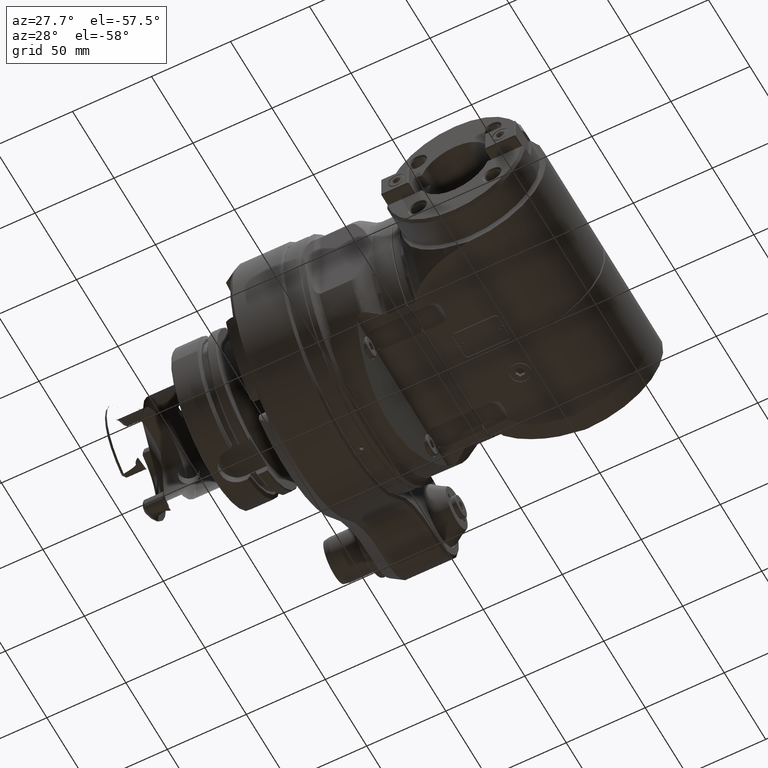
[diagram: clean part render]
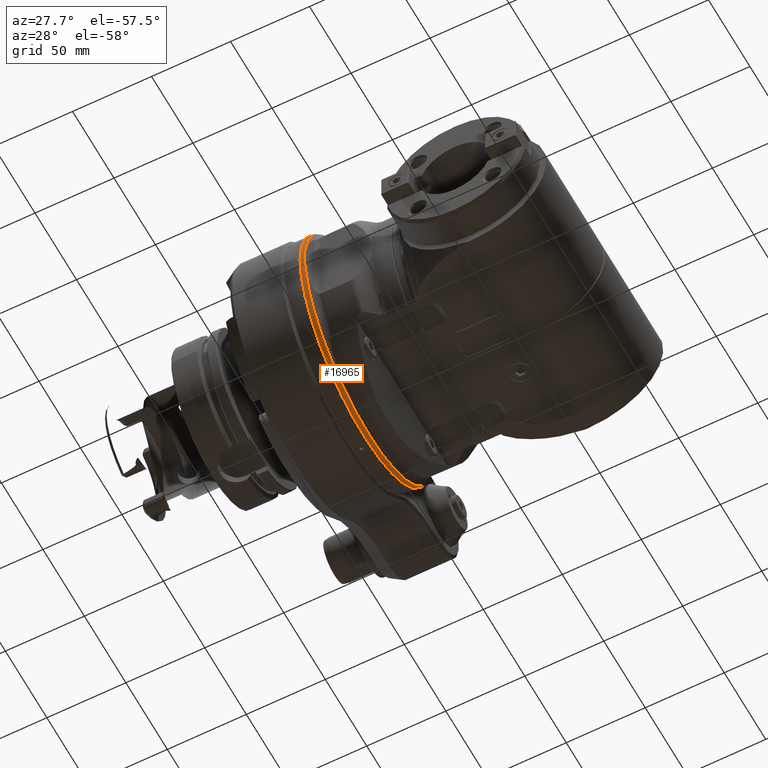
[diagram: same view with one face highlighted and labeled with its STEP entity id]
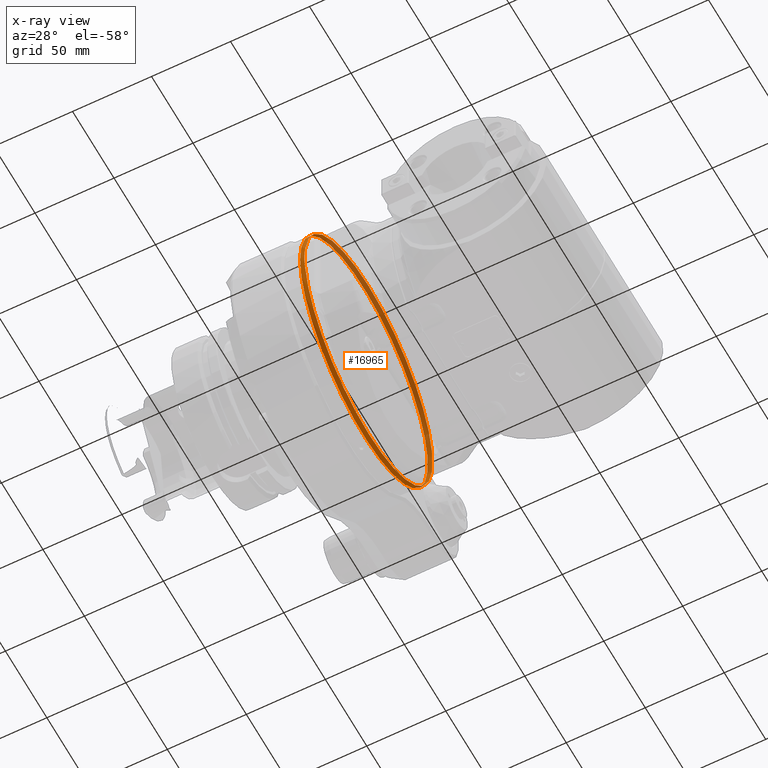
[diagram: x-ray of the same camera — body ghosted, the highlighted face saturated]
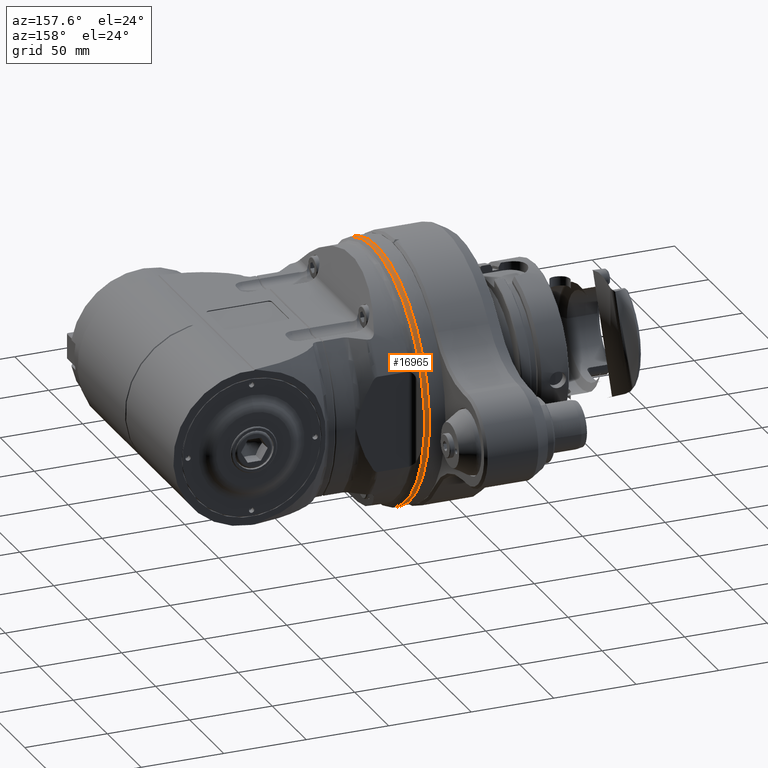
[diagram: same view with one face highlighted and labeled with its STEP entity id]
A machine part, auxiliary view. The second image highlights one B-rep face of the part: STEP entity #16965.
The next image is the same camera in x-ray: the body ghosted, the highlighted face saturated — about 47% of this face is hidden behind the body in this view.
A second angle (auxiliary view) of the same face is appended — the face is thin or edge-on in the first view.
In plain terms, the highlighted cylindrical surface (bore or boss wall) has radius 77 mm, axis along (-1, 0, 0).
Its self-contained STEP definition (entity closure, byte-faithful):
#43=ELLIPSE('',#18606,81.9416884806462,77.);
#44=ELLIPSE('',#18607,81.9416884806462,77.);
#48=ELLIPSE('',#18616,81.9416884806462,77.);
#1946=FACE_OUTER_BOUND('',#2951,.T.);
#2951=EDGE_LOOP('',(#14299,#14300,#14301,#14302,#14303,#14304,#14305,#14306));
#4069=LINE('',#42064,#5376);
#5376=VECTOR('',#22366,77.);
#6546=CIRCLE('',#18612,77.);
#6548=CIRCLE('',#18619,77.);
#6549=CIRCLE('',#18622,77.);
#7838=VERTEX_POINT('',#42025);
#7839=VERTEX_POINT('',#42027);
#7840=VERTEX_POINT('',#42029);
#7843=VERTEX_POINT('',#42045);
#7844=VERTEX_POINT('',#42049);
#7846=VERTEX_POINT('',#42062);
#10144=EDGE_CURVE('',#7838,#7839,#43,.T.);
#10145=EDGE_CURVE('',#7839,#7840,#44,.T.);
#10150=EDGE_CURVE('',#7840,#7843,#6546,.T.);
#10154=EDGE_CURVE('',#7843,#7844,#48,.T.);
#10156=EDGE_CURVE('',#7844,#7838,#6548,.T.);
#10157=EDGE_CURVE('',#7846,#7846,#6549,.T.);
#10158=EDGE_CURVE('',#7846,#7839,#4069,.T.);
#14299=ORIENTED_EDGE('',*,*,#10157,.F.);
#14300=ORIENTED_EDGE('',*,*,#10158,.T.);
#14301=ORIENTED_EDGE('',*,*,#10144,.F.);
#14302=ORIENTED_EDGE('',*,*,#10156,.F.);
#14303=ORIENTED_EDGE('',*,*,#10154,.F.);
#14304=ORIENTED_EDGE('',*,*,#10150,.F.);
#14305=ORIENTED_EDGE('',*,*,#10145,.F.);
#14306=ORIENTED_EDGE('',*,*,#10158,.F.);
#16263=CYLINDRICAL_SURFACE('',#18621,77.);
#16965=ADVANCED_FACE('',(#1946),#16263,.T.);
#18606=AXIS2_PLACEMENT_3D('',#42028,#22332,#22333);
#18607=AXIS2_PLACEMENT_3D('',#42030,#22334,#22335);
#18612=AXIS2_PLACEMENT_3D('',#42046,#22344,#22345);
#18616=AXIS2_PLACEMENT_3D('',#42056,#22352,#22353);
#18619=AXIS2_PLACEMENT_3D('',#42059,#22358,#22359);
#18621=AXIS2_PLACEMENT_3D('',#42061,#22362,#22363);
#18622=AXIS2_PLACEMENT_3D('',#42063,#22364,#22365);
#22332=DIRECTION('center_axis',(0.939692620785897,-0.342020143325699,0.));
#22333=DIRECTION('ref_axis',(0.342020143325699,0.939692620785897,0.));
#22334=DIRECTION('center_axis',(0.939692620785897,-0.342020143325699,0.));
#22335=DIRECTION('ref_axis',(0.342020143325699,0.939692620785897,0.));
#22344=DIRECTION('center_axis',(1.,0.,0.));
#22345=DIRECTION('ref_axis',(0.,-0.990161457900833,-0.139929579745305));
#22352=DIRECTION('center_axis',(0.939692620785897,0.342020143325699,0.));
#22353=DIRECTION('ref_axis',(-0.342020143325699,0.939692620785897,0.));
#22358=DIRECTION('center_axis',(1.,0.,0.));
#22359=DIRECTION('ref_axis',(0.,0.990161457900833,0.139929579745305));
#22362=DIRECTION('center_axis',(-1.,0.,0.));
#22363=DIRECTION('ref_axis',(0.,1.,0.));
#22364=DIRECTION('center_axis',(-1.,0.,0.));
#22365=DIRECTION('ref_axis',(0.,-0.737520564389613,0.675324675324712));
#22366=DIRECTION('',(1.,0.,0.));
#42025=CARTESIAN_POINT('',(-9.,-76.24243225836,10.77457764039));
#42027=CARTESIAN_POINT('',(-9.27573210839615,-77.,9.42978035343462E-15));
#42028=CARTESIAN_POINT('Origin',(18.7499759301042,0.,0.));
#42029=CARTESIAN_POINT('',(-9.,-76.24243225836,-10.77457764039));
#42030=CARTESIAN_POINT('Origin',(18.7499759301042,0.,0.));
#42045=CARTESIAN_POINT('',(-9.,76.24243225836,-10.77457764039));
#42046=CARTESIAN_POINT('Origin',(-9.,0.,0.));
#42049=CARTESIAN_POINT('',(-9.,76.24243225836,10.77457764039));
#42056=CARTESIAN_POINT('Origin',(18.749975930102,0.,0.));
#42059=CARTESIAN_POINT('Origin',(-9.,0.,0.));
#42061=CARTESIAN_POINT('Origin',(-11.,0.,0.));
#42062=CARTESIAN_POINT('',(-12.,-77.,9.42978035343462E-15));
#42063=CARTESIAN_POINT('Origin',(-12.,0.,0.));
#42064=CARTESIAN_POINT('',(-11.,-77.,9.42978035343462E-15));